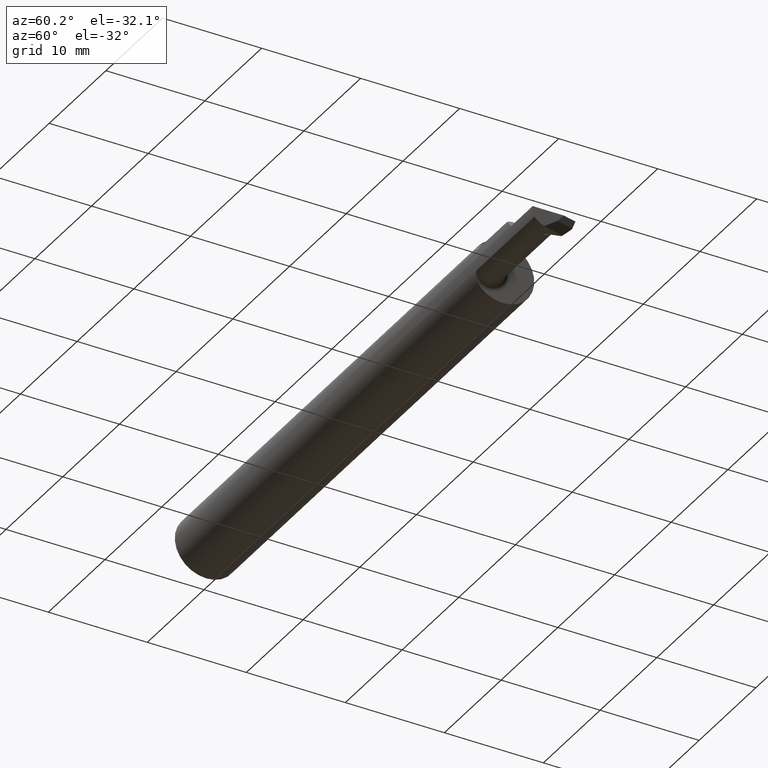
[diagram: clean part render]
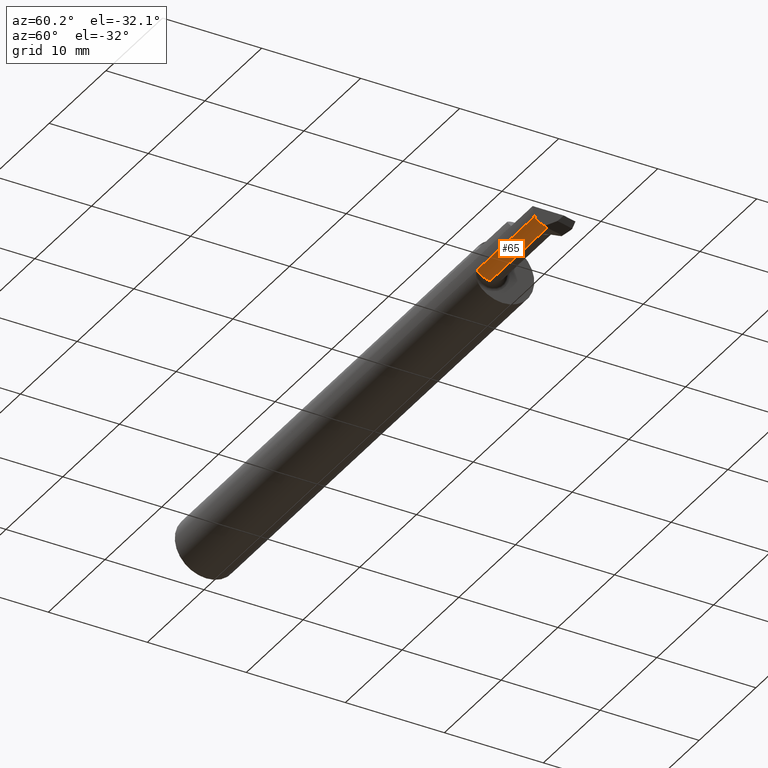
[diagram: same view with one face highlighted and labeled with its STEP entity id]
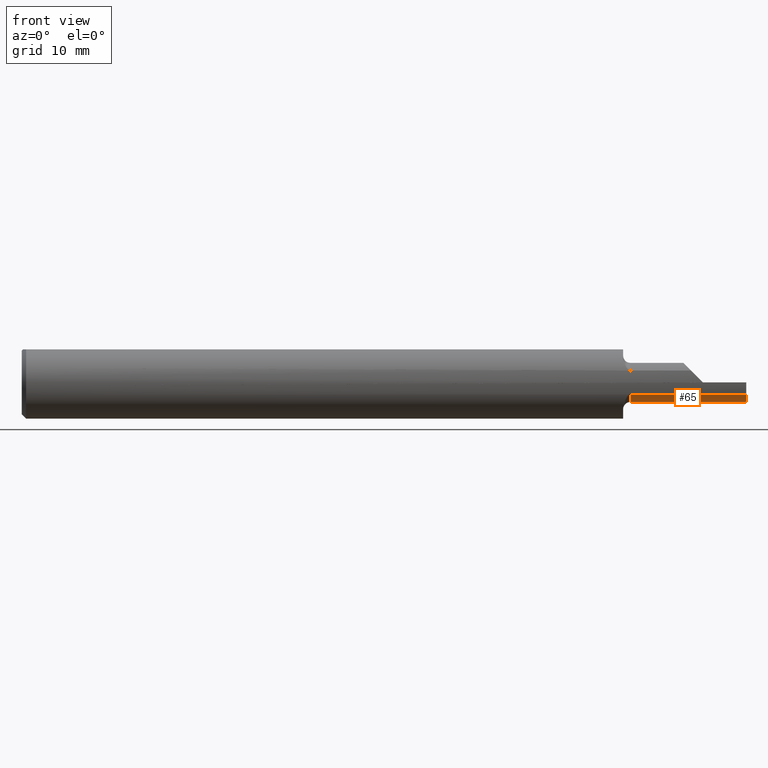
[diagram: same view with one face highlighted and labeled with its STEP entity id]
A machine part, auxiliary view. The second image highlights one B-rep face of the part: STEP entity #65.
A second angle (front view) of the same face is appended — the face is thin or edge-on in the first view.
In plain terms, the highlighted cylindrical surface (edge-blend (fillet) strip) has radius 1.7145 mm, axis along (-1, -0, -0).
Its self-contained STEP definition (entity closure, byte-faithful):
#5 = DIRECTION ( 'NONE',  ( -1.000000000000000000, -0.000000000000000000, -0.000000000000000000 ) ) ;
#21 = VERTEX_POINT ( 'NONE', #659 ) ;
#30 = CARTESIAN_POINT ( 'NONE',  ( 2.500000000000000000, -0.1178880730380729852, -0.04110869415792685333 ) ) ;
#65 = ADVANCED_FACE ( 'NONE', ( #116 ), #963, .T. ) ;
#94 = VERTEX_POINT ( 'NONE', #299 ) ;
#97 = VERTEX_POINT ( 'NONE', #828 ) ;
#116 = FACE_OUTER_BOUND ( 'NONE', #573, .T. ) ;
#166 = CARTESIAN_POINT ( 'NONE',  ( 2.075000000000000178, -0.06435000000000003217, -0.06750000000000001832 ) ) ;
#182 = EDGE_CURVE ( 'NONE', #764, #449, #296, .T. ) ;
#191 = AXIS2_PLACEMENT_3D ( 'NONE', #212, #297, #897 ) ;
#210 = CARTESIAN_POINT ( 'NONE',  ( 2.498524702252900909, -0.07335304073178651463, -0.06704894329466547231 ) ) ;
#212 = CARTESIAN_POINT ( 'NONE',  ( 2.100000000000000089, -0.06435000000000003217, 0.000000000000000000 ) ) ;
#218 = EDGE_CURVE ( 'NONE', #97, #94, #766, .T. ) ;
#245 = EDGE_CURVE ( 'NONE', #511, #97, #865, .T. ) ;
#289 = DIRECTION ( 'NONE',  ( 1.000000000000000000, -0.000000000000000000, -0.000000000000000000 ) ) ;
#296 = CIRCLE ( 'NONE', #654, 0.06750000000000001832 ) ;
#297 = DIRECTION ( 'NONE',  ( 1.000000000000000000, 0.000000000000000000, 0.000000000000000000 ) ) ;
#299 = CARTESIAN_POINT ( 'NONE',  ( 2.100000000000000089, -0.06435000000000003217, -0.06750000000000001832 ) ) ;
#303 = CARTESIAN_POINT ( 'NONE',  ( 2.500000000000000000, -0.06435000000000003217, 0.000000000000000000 ) ) ;
#309 =( BOUNDED_CURVE ( )  B_SPLINE_CURVE ( 3, ( #896, #977, #210, #892 ),
 .UNSPECIFIED., .F., .F. ) 
 B_SPLINE_CURVE_WITH_KNOTS ( ( 4, 4 ),
 ( 0.6108652381980129720, 0.8110997559319969019 ),
 .UNSPECIFIED. ) 
 CURVE ( )  GEOMETRIC_REPRESENTATION_ITEM ( )  RATIONAL_B_SPLINE_CURVE ( ( 1.000000000000000000, 0.9966616347228353101, 0.9966616347228353101, 1.000000000000000000 ) ) 
 REPRESENTATION_ITEM ( '' )  );
#378 = ORIENTED_EDGE ( 'NONE', *, *, #218, .F. ) ;
#418 = DIRECTION ( 'NONE',  ( -1.000000000000000000, -0.000000000000000000, -0.000000000000000000 ) ) ;
#436 = CARTESIAN_POINT ( 'NONE',  ( 2.496029762434592403, -0.06435000000000004605, -0.06750000000000001832 ) ) ;
#444 = AXIS2_PLACEMENT_3D ( 'NONE', #885, #494, #796 ) ;
#449 = VERTEX_POINT ( 'NONE', #733 ) ;
#483 = ORIENTED_EDGE ( 'NONE', *, *, #182, .F. ) ;
#494 = DIRECTION ( 'NONE',  ( -1.000000000000000000, -0.000000000000000000, -0.000000000000000000 ) ) ;
#511 = VERTEX_POINT ( 'NONE', #436 ) ;
#546 = CARTESIAN_POINT ( 'NONE',  ( 2.500000000000000000, -0.06435000000000004605, -0.06750000000000001832 ) ) ;
#560 = DIRECTION ( 'NONE',  ( -1.000000000000000000, -0.000000000000000000, -0.000000000000000000 ) ) ;
#573 = EDGE_LOOP ( 'NONE', ( #378, #773, #782, #483, #902, #891 ) ) ;
#606 = VECTOR ( 'NONE', #418, 39.37007874015748143 ) ;
#607 = CARTESIAN_POINT ( 'NONE',  ( 2.262500000000000178, -0.1178880730380729852, -0.04110869415792685333 ) ) ;
#615 = DIRECTION ( 'NONE',  ( 0.000000000000000000, 0.000000000000000000, 1.000000000000000000 ) ) ;
#641 = EDGE_CURVE ( 'NONE', #21, #94, #820, .T. ) ;
#654 = AXIS2_PLACEMENT_3D ( 'NONE', #303, #289, #615 ) ;
#659 = CARTESIAN_POINT ( 'NONE',  ( 2.100000000000000089, -0.1178880730380729852, -0.04110869415792685333 ) ) ;
#717 = VECTOR ( 'NONE', #5, 39.37007874015748143 ) ;
#733 = CARTESIAN_POINT ( 'NONE',  ( 2.500000000000000000, -0.07777569386178065369, -0.06615134726012476818 ) ) ;
#764 = VERTEX_POINT ( 'NONE', #30 ) ;
#766 = LINE ( 'NONE', #166, #606 ) ;
#773 = ORIENTED_EDGE ( 'NONE', *, *, #245, .F. ) ;
#782 = ORIENTED_EDGE ( 'NONE', *, *, #931, .T. ) ;
#796 = DIRECTION ( 'NONE',  ( 0.000000000000000000, 0.000000000000000000, 1.000000000000000000 ) ) ;
#807 = VECTOR ( 'NONE', #560, 39.37007874015748143 ) ;
#820 = CIRCLE ( 'NONE', #191, 0.06750000000000001832 ) ;
#828 = CARTESIAN_POINT ( 'NONE',  ( 2.450000000000000178, -0.06435000000000004605, -0.06750000000000001832 ) ) ;
#855 = EDGE_CURVE ( 'NONE', #764, #21, #981, .T. ) ;
#865 = LINE ( 'NONE', #546, #807 ) ;
#885 = CARTESIAN_POINT ( 'NONE',  ( 2.075000000000000178, -0.06435000000000003217, 0.000000000000000000 ) ) ;
#891 = ORIENTED_EDGE ( 'NONE', *, *, #641, .T. ) ;
#892 = CARTESIAN_POINT ( 'NONE',  ( 2.500000000000000000, -0.07777569386178065369, -0.06615134726012476818 ) ) ;
#896 = CARTESIAN_POINT ( 'NONE',  ( 2.496029762434592403, -0.06435000000000004605, -0.06750000000000001832 ) ) ;
#897 = DIRECTION ( 'NONE',  ( 0.000000000000000000, 0.000000000000000000, -1.000000000000000000 ) ) ;
#902 = ORIENTED_EDGE ( 'NONE', *, *, #855, .T. ) ;
#931 = EDGE_CURVE ( 'NONE', #511, #449, #309, .T. ) ;
#963 = CYLINDRICAL_SURFACE ( 'NONE', #444, 0.06750000000000001832 ) ;
#977 = CARTESIAN_POINT ( 'NONE',  ( 2.497196856898272532, -0.06886281944569799807, -0.06750000000000000444 ) ) ;
#981 = LINE ( 'NONE', #607, #717 ) ;